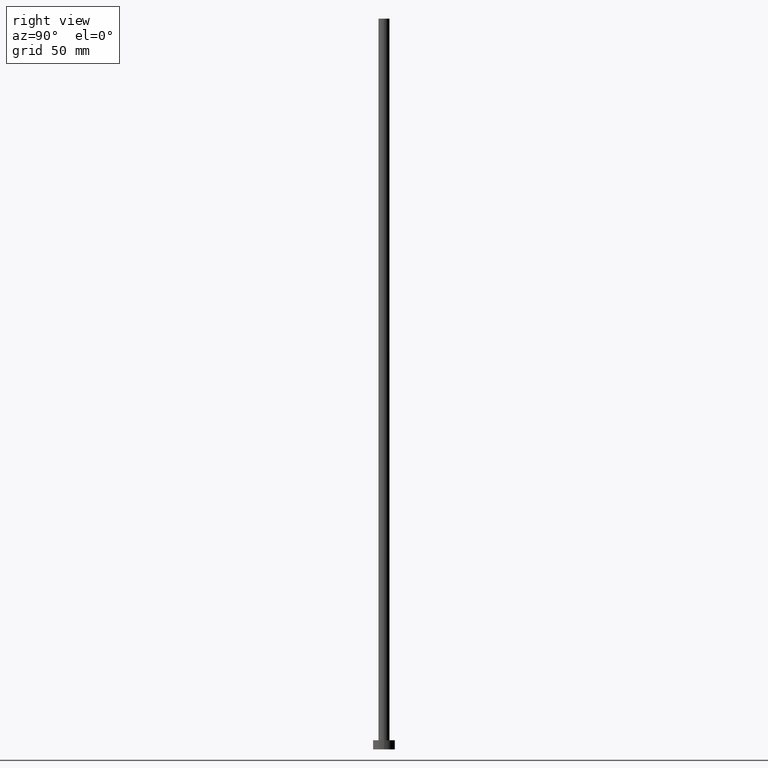
[diagram: clean part render]
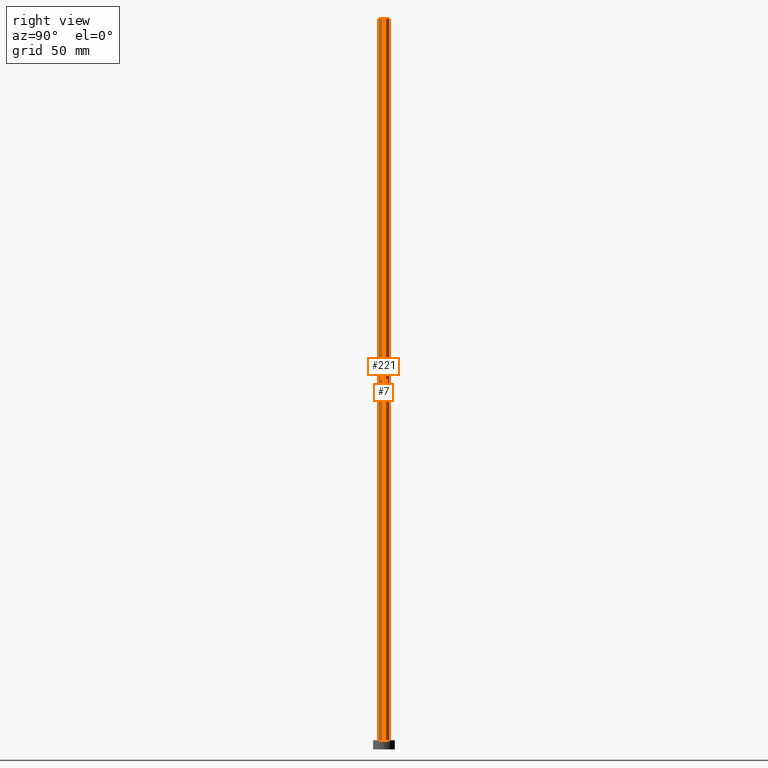
[diagram: same view with one multi-face feature highlighted, each face labeled with its STEP entity id]
A machine part, right view. The highlighted faces form ONE feature: a constant-radius fillet chain: 2 tangent blend faces with common blend radius 3 mm. The faces share edges in the B-rep.
Their STEP definitions:
[1] entity #7 (Cylinder):
#6 = LINE ( 'NONE', #140, #223 ) ;
#7 = ADVANCED_FACE ( 'NONE', ( #64 ), #229, .T. ) ;
#14 = VECTOR ( 'NONE', #46, 1000.000000000000000 ) ;
#30 = CARTESIAN_POINT ( 'NONE',  ( -3.000000000000000444, 0.000000000000000000, 400.0000000000000000 ) ) ;
#32 = CIRCLE ( 'NONE', #58, 3.000000000000000444 ) ;
#37 = ORIENTED_EDGE ( 'NONE', *, *, #38, .T. ) ;
#38 = EDGE_CURVE ( 'NONE', #186, #246, #6, .T. ) ;
#39 = ORIENTED_EDGE ( 'NONE', *, *, #120, .F. ) ;
#42 = CARTESIAN_POINT ( 'NONE',  ( 0.000000000000000000, 0.000000000000000000, 400.0000000000000000 ) ) ;
#43 = EDGE_CURVE ( 'NONE', #186, #142, #78, .T. ) ;
#46 = DIRECTION ( 'NONE',  ( -0.000000000000000000, -0.000000000000000000, -1.000000000000000000 ) ) ;
#47 = CARTESIAN_POINT ( 'NONE',  ( 0.000000000000000000, 0.000000000000000000, 5.000000000000000000 ) ) ;
#58 = AXIS2_PLACEMENT_3D ( 'NONE', #47, #191, #230 ) ;
#64 = FACE_OUTER_BOUND ( 'NONE', #205, .T. ) ;
#68 = CARTESIAN_POINT ( 'NONE',  ( -3.000000000000000444, 0.000000000000000000, 5.000000000000000000 ) ) ;
#73 = CARTESIAN_POINT ( 'NONE',  ( 3.000000000000000444, 3.673940397442059868E-16, 400.0000000000000000 ) ) ;
#78 = CIRCLE ( 'NONE', #156, 3.000000000000000444 ) ;
#84 = ORIENTED_EDGE ( 'NONE', *, *, #43, .F. ) ;
#86 = EDGE_CURVE ( 'NONE', #246, #146, #32, .T. ) ;
#93 = LINE ( 'NONE', #132, #14 ) ;
#120 = EDGE_CURVE ( 'NONE', #142, #146, #93, .T. ) ;
#125 = CARTESIAN_POINT ( 'NONE',  ( 0.000000000000000000, 0.000000000000000000, 400.0000000000000000 ) ) ;
#132 = CARTESIAN_POINT ( 'NONE',  ( -3.000000000000000444, 0.000000000000000000, 400.0000000000000000 ) ) ;
#138 = AXIS2_PLACEMENT_3D ( 'NONE', #125, #206, #249 ) ;
#140 = CARTESIAN_POINT ( 'NONE',  ( 3.000000000000000444, 3.673940397442059868E-16, 400.0000000000000000 ) ) ;
#142 = VERTEX_POINT ( 'NONE', #30 ) ;
#146 = VERTEX_POINT ( 'NONE', #68 ) ;
#156 = AXIS2_PLACEMENT_3D ( 'NONE', #42, #214, #176 ) ;
#176 = DIRECTION ( 'NONE',  ( 1.000000000000000000, 0.000000000000000000, 0.000000000000000000 ) ) ;
#182 = ORIENTED_EDGE ( 'NONE', *, *, #86, .T. ) ;
#186 = VERTEX_POINT ( 'NONE', #73 ) ;
#191 = DIRECTION ( 'NONE',  ( 0.000000000000000000, 0.000000000000000000, 1.000000000000000000 ) ) ;
#205 = EDGE_LOOP ( 'NONE', ( #84, #37, #182, #39 ) ) ;
#206 = DIRECTION ( 'NONE',  ( -0.000000000000000000, -0.000000000000000000, -1.000000000000000000 ) ) ;
#212 = CARTESIAN_POINT ( 'NONE',  ( 3.000000000000000444, 3.673940397442059868E-16, 5.000000000000000000 ) ) ;
#214 = DIRECTION ( 'NONE',  ( 0.000000000000000000, 0.000000000000000000, 1.000000000000000000 ) ) ;
#223 = VECTOR ( 'NONE', #224, 1000.000000000000000 ) ;
#224 = DIRECTION ( 'NONE',  ( -0.000000000000000000, -0.000000000000000000, -1.000000000000000000 ) ) ;
#229 = CYLINDRICAL_SURFACE ( 'NONE', #138, 3.000000000000000444 ) ;
#230 = DIRECTION ( 'NONE',  ( 1.000000000000000000, 0.000000000000000000, 0.000000000000000000 ) ) ;
#246 = VERTEX_POINT ( 'NONE', #212 ) ;
#249 = DIRECTION ( 'NONE',  ( -1.000000000000000000, 0.000000000000000000, 0.000000000000000000 ) ) ;
[2] entity #221 (Cylinder):
#2 = CARTESIAN_POINT ( 'NONE',  ( 0.000000000000000000, 0.000000000000000000, 400.0000000000000000 ) ) ;
#6 = LINE ( 'NONE', #140, #223 ) ;
#8 = ORIENTED_EDGE ( 'NONE', *, *, #119, .F. ) ;
#14 = VECTOR ( 'NONE', #46, 1000.000000000000000 ) ;
#16 = DIRECTION ( 'NONE',  ( -0.000000000000000000, -0.000000000000000000, -1.000000000000000000 ) ) ;
#24 = ORIENTED_EDGE ( 'NONE', *, *, #120, .T. ) ;
#30 = CARTESIAN_POINT ( 'NONE',  ( -3.000000000000000444, 0.000000000000000000, 400.0000000000000000 ) ) ;
#38 = EDGE_CURVE ( 'NONE', #186, #246, #6, .T. ) ;
#46 = DIRECTION ( 'NONE',  ( -0.000000000000000000, -0.000000000000000000, -1.000000000000000000 ) ) ;
#54 = DIRECTION ( 'NONE',  ( -1.000000000000000000, 0.000000000000000000, 0.000000000000000000 ) ) ;
#68 = CARTESIAN_POINT ( 'NONE',  ( -3.000000000000000444, 0.000000000000000000, 5.000000000000000000 ) ) ;
#71 = CARTESIAN_POINT ( 'NONE',  ( 0.000000000000000000, 0.000000000000000000, 400.0000000000000000 ) ) ;
#72 = DIRECTION ( 'NONE',  ( 0.000000000000000000, 0.000000000000000000, 1.000000000000000000 ) ) ;
#73 = CARTESIAN_POINT ( 'NONE',  ( 3.000000000000000444, 3.673940397442059868E-16, 400.0000000000000000 ) ) ;
#93 = LINE ( 'NONE', #132, #14 ) ;
#102 = ORIENTED_EDGE ( 'NONE', *, *, #38, .F. ) ;
#103 = AXIS2_PLACEMENT_3D ( 'NONE', #2, #16, #54 ) ;
#108 = AXIS2_PLACEMENT_3D ( 'NONE', #71, #152, #147 ) ;
#119 = EDGE_CURVE ( 'NONE', #142, #186, #183, .T. ) ;
#120 = EDGE_CURVE ( 'NONE', #142, #146, #93, .T. ) ;
#131 = CIRCLE ( 'NONE', #227, 3.000000000000000444 ) ;
#132 = CARTESIAN_POINT ( 'NONE',  ( -3.000000000000000444, 0.000000000000000000, 400.0000000000000000 ) ) ;
#140 = CARTESIAN_POINT ( 'NONE',  ( 3.000000000000000444, 3.673940397442059868E-16, 400.0000000000000000 ) ) ;
#142 = VERTEX_POINT ( 'NONE', #30 ) ;
#146 = VERTEX_POINT ( 'NONE', #68 ) ;
#147 = DIRECTION ( 'NONE',  ( 1.000000000000000000, 0.000000000000000000, 0.000000000000000000 ) ) ;
#152 = DIRECTION ( 'NONE',  ( 0.000000000000000000, 0.000000000000000000, 1.000000000000000000 ) ) ;
#153 = CYLINDRICAL_SURFACE ( 'NONE', #103, 3.000000000000000444 ) ;
#163 = ORIENTED_EDGE ( 'NONE', *, *, #189, .T. ) ;
#174 = FACE_OUTER_BOUND ( 'NONE', #184, .T. ) ;
#183 = CIRCLE ( 'NONE', #108, 3.000000000000000444 ) ;
#184 = EDGE_LOOP ( 'NONE', ( #102, #8, #24, #163 ) ) ;
#186 = VERTEX_POINT ( 'NONE', #73 ) ;
#189 = EDGE_CURVE ( 'NONE', #146, #246, #131, .T. ) ;
#193 = CARTESIAN_POINT ( 'NONE',  ( 0.000000000000000000, 0.000000000000000000, 5.000000000000000000 ) ) ;
#197 = DIRECTION ( 'NONE',  ( 1.000000000000000000, 0.000000000000000000, 0.000000000000000000 ) ) ;
#212 = CARTESIAN_POINT ( 'NONE',  ( 3.000000000000000444, 3.673940397442059868E-16, 5.000000000000000000 ) ) ;
#221 = ADVANCED_FACE ( 'NONE', ( #174 ), #153, .T. ) ;
#223 = VECTOR ( 'NONE', #224, 1000.000000000000000 ) ;
#224 = DIRECTION ( 'NONE',  ( -0.000000000000000000, -0.000000000000000000, -1.000000000000000000 ) ) ;
#227 = AXIS2_PLACEMENT_3D ( 'NONE', #193, #72, #197 ) ;
#246 = VERTEX_POINT ( 'NONE', #212 ) ;